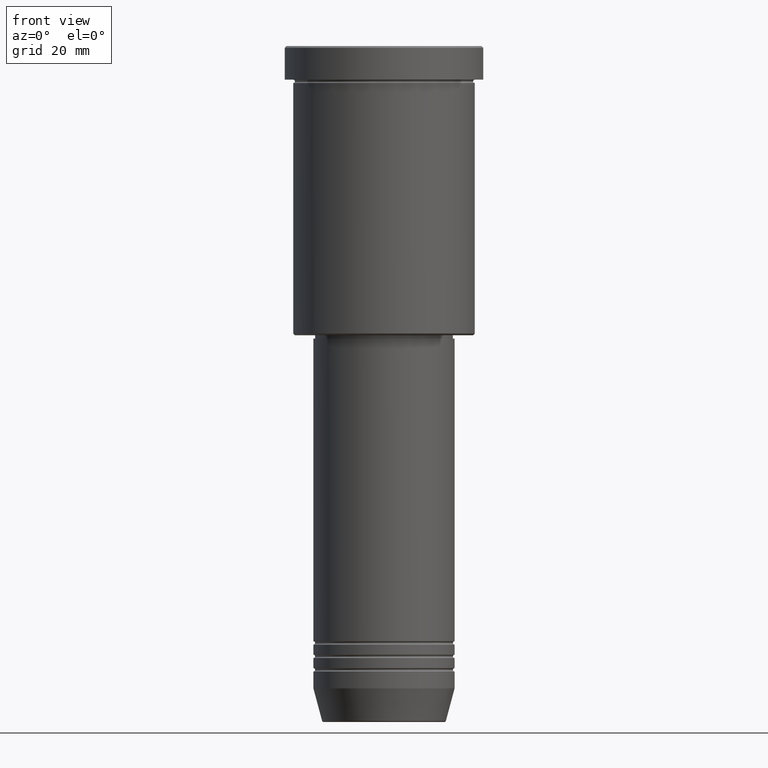
[diagram: clean part render]
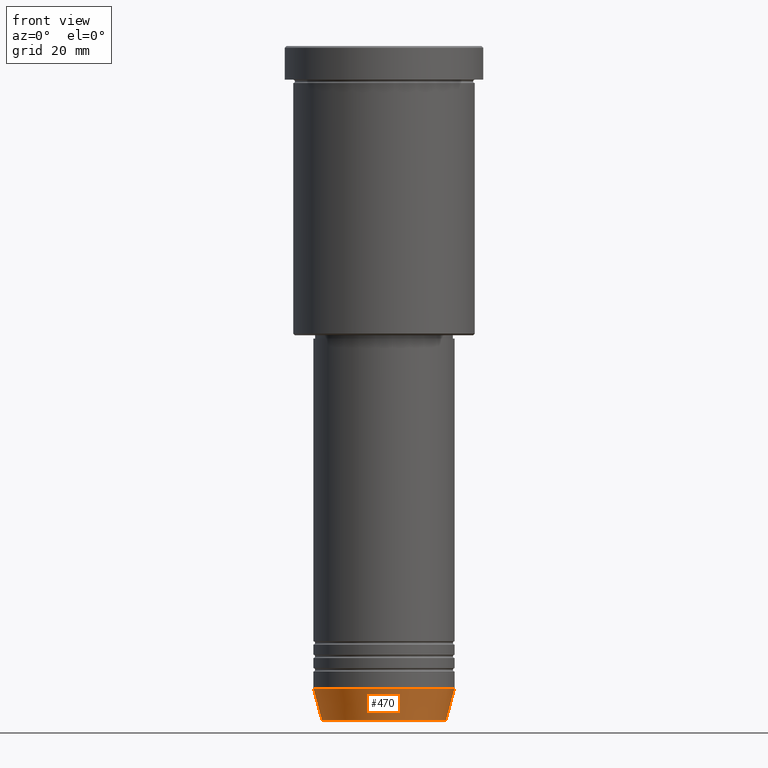
[diagram: same view with one face highlighted and labeled with its STEP entity id]
A machine part, front view. The second image highlights one B-rep face of the part: STEP entity #470.
In plain terms, the highlighted conical surface has half-angle 15 deg.
Its self-contained STEP definition (entity closure, byte-faithful):
#9 = CARTESIAN_POINT ( 'NONE',  ( 0.000000000000000000, 0.000000000000000000, -191.0000000000000000 ) ) ;
#95 = CARTESIAN_POINT ( 'NONE',  ( 21.00000000000000000, 0.000000000000000000, -191.0000000000000000 ) ) ;
#103 = EDGE_CURVE ( 'NONE', #475, #218, #224, .T. ) ;
#123 = DIRECTION ( 'NONE',  ( -0.000000000000000000, -0.000000000000000000, 1.000000000000000000 ) ) ;
#142 = EDGE_CURVE ( 'NONE', #339, #480, #366, .T. ) ;
#164 = EDGE_CURVE ( 'NONE', #218, #480, #495, .T. ) ;
#201 = VECTOR ( 'NONE', #877, 1000.000000000000114 ) ;
#210 = DIRECTION ( 'NONE',  ( 0.2588190451025211836, 0.000000000000000000, 0.9659258262890680902 ) ) ;
#218 = VERTEX_POINT ( 'NONE', #305 ) ;
#223 = CARTESIAN_POINT ( 'NONE',  ( 21.00000000000000000, 0.000000000000000000, -191.0000000000000000 ) ) ;
#224 = CIRCLE ( 'NONE', #536, 18.41980749484383040 ) ;
#305 = CARTESIAN_POINT ( 'NONE',  ( 18.41980749484383040, 0.000000000000000000, -200.6294095225512990 ) ) ;
#339 = VERTEX_POINT ( 'NONE', #348 ) ;
#348 = CARTESIAN_POINT ( 'NONE',  ( -21.00000000000000000, 2.571758278209441661E-15, -191.0000000000000000 ) ) ;
#353 = EDGE_LOOP ( 'NONE', ( #377, #752, #1073, #778 ) ) ;
#366 = CIRCLE ( 'NONE', #786, 21.00000000000000000 ) ;
#377 = ORIENTED_EDGE ( 'NONE', *, *, #796, .F. ) ;
#410 = CARTESIAN_POINT ( 'NONE',  ( 0.000000000000000000, 0.000000000000000000, -191.0000000000000000 ) ) ;
#411 = CARTESIAN_POINT ( 'NONE',  ( -21.00000000000000000, 2.571758278209441661E-15, -191.0000000000000000 ) ) ;
#444 = DIRECTION ( 'NONE',  ( 1.000000000000000000, 0.000000000000000000, 0.000000000000000000 ) ) ;
#464 = VECTOR ( 'NONE', #210, 1000.000000000000114 ) ;
#470 = ADVANCED_FACE ( 'NONE', ( #713 ), #545, .T. ) ;
#475 = VERTEX_POINT ( 'NONE', #534 ) ;
#480 = VERTEX_POINT ( 'NONE', #95 ) ;
#495 = LINE ( 'NONE', #223, #464 ) ;
#508 = LINE ( 'NONE', #411, #201 ) ;
#534 = CARTESIAN_POINT ( 'NONE',  ( -18.41980749484383040, 2.413767053578267064E-15, -200.6294095225512990 ) ) ;
#536 = AXIS2_PLACEMENT_3D ( 'NONE', #702, #616, #984 ) ;
#545 = CONICAL_SURFACE ( 'NONE', #1100, 21.00000000000000000, 0.2617993877991499074 ) ;
#616 = DIRECTION ( 'NONE',  ( -0.000000000000000000, -0.000000000000000000, 1.000000000000000000 ) ) ;
#702 = CARTESIAN_POINT ( 'NONE',  ( 0.000000000000000000, 0.000000000000000000, -200.6294095225512990 ) ) ;
#713 = FACE_OUTER_BOUND ( 'NONE', #353, .T. ) ;
#752 = ORIENTED_EDGE ( 'NONE', *, *, #103, .T. ) ;
#778 = ORIENTED_EDGE ( 'NONE', *, *, #142, .F. ) ;
#786 = AXIS2_PLACEMENT_3D ( 'NONE', #410, #1033, #1121 ) ;
#796 = EDGE_CURVE ( 'NONE', #475, #339, #508, .T. ) ;
#877 = DIRECTION ( 'NONE',  ( -0.2588190451025211836, 3.169619151431770488E-17, 0.9659258262890680902 ) ) ;
#984 = DIRECTION ( 'NONE',  ( 1.000000000000000000, 0.000000000000000000, 0.000000000000000000 ) ) ;
#1033 = DIRECTION ( 'NONE',  ( -0.000000000000000000, -0.000000000000000000, 1.000000000000000000 ) ) ;
#1073 = ORIENTED_EDGE ( 'NONE', *, *, #164, .T. ) ;
#1100 = AXIS2_PLACEMENT_3D ( 'NONE', #9, #123, #444 ) ;
#1121 = DIRECTION ( 'NONE',  ( 1.000000000000000000, 0.000000000000000000, 0.000000000000000000 ) ) ;